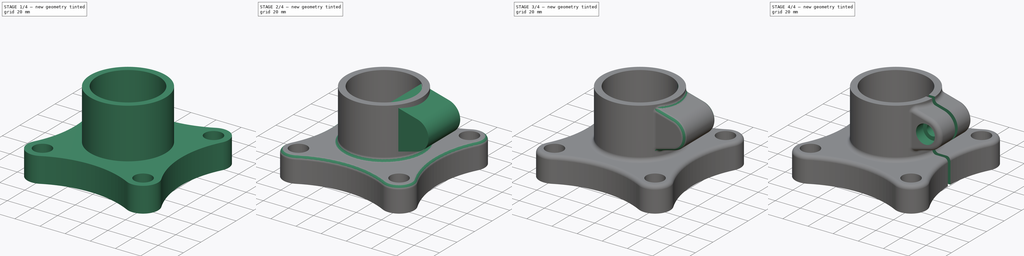
[diagram: build sequence overview — one tinted view per stage of 4, left to right]
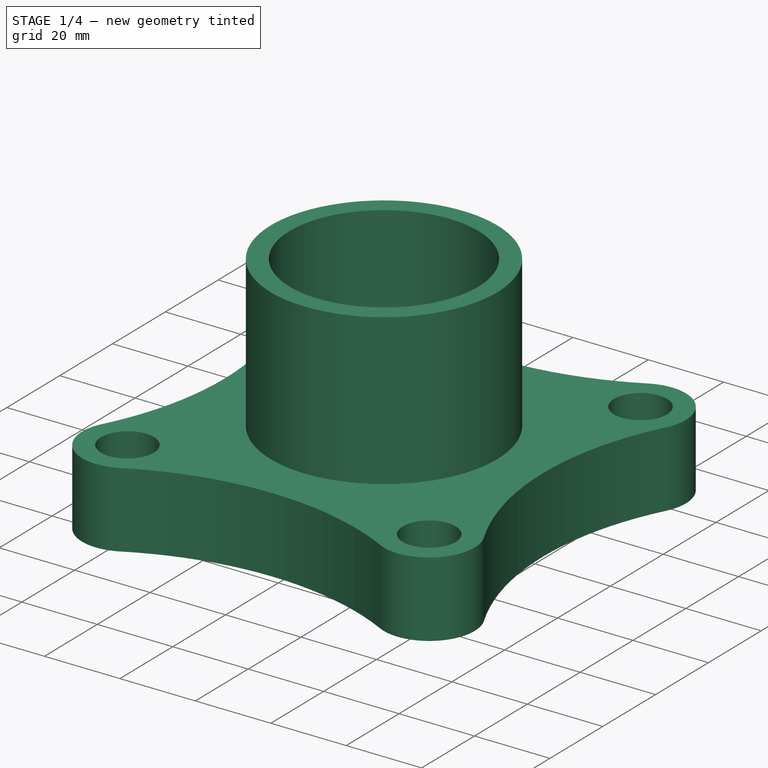
[diagram: stage 1 of 4 — iso view after this stage's code; geometry added in this stage tinted green]
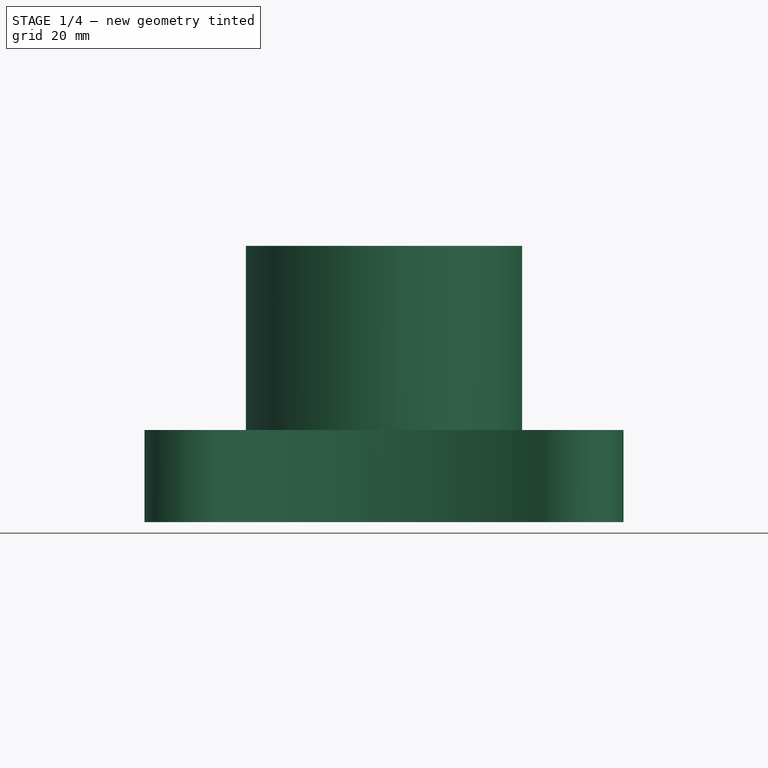
[diagram: stage 1 of 4 — front view after this stage's code; geometry added in this stage tinted green]
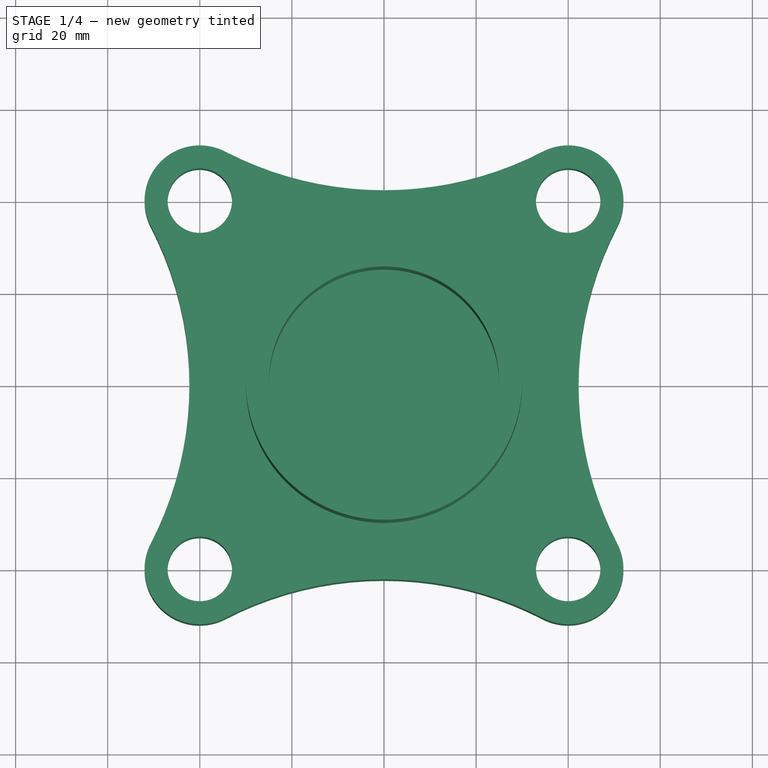
[diagram: stage 1 of 4 — top view after this stage's code; geometry added in this stage tinted green]
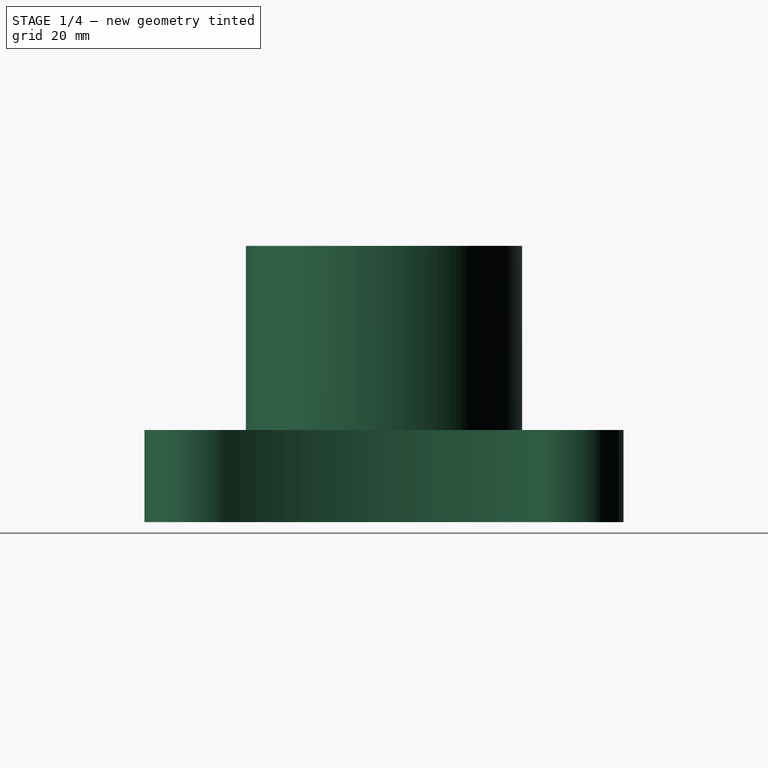
[diagram: stage 1 of 4 — right view after this stage's code; geometry added in this stage tinted green]
FCSTD DOCUMENT  (FreeCAD 1.0R39319 (Git))
Label: Mania2021
License: All rights reserved
LicenseURL: https://en.wikipedia.org/wiki/All_rights_reserved
objects: Sketcher::SketchObject×8, PartDesign::Pocket×4, PartDesign::Pad×3, PartDesign::Fillet×3, PartDesign::Hole×1, PartDesign::Body×1
note: 50 computed .brp shape members not serialized (recipe doc carries the construction recipe); baked Part::Feature solids carry a one-line shape summary decoded from their .brp

FEATURE [Sketcher::SketchObject] Sketch
  ArcFitTolerance = 1e-06
  AttachmentSupport = -> [XY_Plane]
  FullyConstrained = true
  MakeInternals = false
  MapMode = 5
  sketch-geometry (12):
    g0: ArcOfCircle CenterX=0 CenterY=117.259 CenterZ=0 NormalX=0 NormalY=0 NormalZ=1 AngleXU=0 Radius=75 StartAngle=4.23465 EndAngle=5.19013
    g1: ArcOfCircle CenterX=40 CenterY=40 CenterZ=0 NormalX=0 NormalY=0 NormalZ=1 AngleXU=0 Radius=12 StartAngle=5.80545 EndAngle=8.33172
    g2: ArcOfCircle CenterX=-40 CenterY=40 CenterZ=0 NormalX=0 NormalY=0 NormalZ=1 AngleXU=0 Radius=12 StartAngle=1.09306 EndAngle=3.61933
    g3: ArcOfCircle CenterX=-117.259 CenterY=5e-15 CenterZ=0 NormalX=0 NormalY=0 NormalZ=1 AngleXU=0 Radius=75 StartAngle=5.80545 EndAngle=6.76092
    g4: ArcOfCircle CenterX=-40 CenterY=-40 CenterZ=0 NormalX=0 NormalY=0 NormalZ=1 AngleXU=0 Radius=12 StartAngle=2.66386 EndAngle=5.19013
    g5: ArcOfCircle CenterX=0 CenterY=-117.259 CenterZ=0 NormalX=0 NormalY=0 NormalZ=1 AngleXU=0 Radius=75 StartAngle=1.09306 EndAngle=2.04853
    g6: ArcOfCircle CenterX=40 CenterY=-40 CenterZ=0 NormalX=0 NormalY=0 NormalZ=1 AngleXU=0 Radius=12 StartAngle=4.23465 EndAngle=6.76092
    g7: ArcOfCircle CenterX=117.259 CenterY=0 CenterZ=0 NormalX=0 NormalY=0 NormalZ=1 AngleXU=0 Radius=75 StartAngle=2.66386 EndAngle=3.61933
    g8: Circle CenterX=-40 CenterY=40 CenterZ=0 NormalX=0 NormalY=0 NormalZ=1 AngleXU=0 Radius=7
    g9: Circle CenterX=-40 CenterY=-40 CenterZ=0 NormalX=0 NormalY=0 NormalZ=1 AngleXU=0 Radius=7
    g10: Circle CenterX=40 CenterY=-40 CenterZ=0 NormalX=0 NormalY=0 NormalZ=1 AngleXU=0 Radius=7
    g11: Circle CenterX=40 CenterY=40 CenterZ=0 NormalX=0 NormalY=0 NormalZ=1 AngleXU=0 Radius=7
  constraints (30):
    c: Radius(g0) = 75
    c: Radius(g1) = 12
    c: PointOnObject(g0,g-2)
    c: Tangent(g2,g0) = 1.5708
    c: DistanceX(g2,g1) = 80
    c: Symmetric(g1,g2,g-2)
    c: Symmetric(g2,g3,g-1)
    c: Equal(g0,g3)
    c: Tangent(g3,g2) = 1.5708
    c: Tangent(g4,g3) = 1.5708
    c: Equal(g2,g4)
    c: DistanceY(g4,g2) = 80
    c: Tangent(g5,g4) = 1.5708
    c: PointOnObject(g5,g-2)
    c: Tangent(g6,g5) = 1.5708
    c: Tangent(g7,g6) = 1.5708
    c: Tangent(g1,g7) = 1.5708
    c: Tangent(g0,g1) = 1.5708
    c: Equal(g0,g5)
    c: Equal(g1,g6)
    c: Equal(g0,g7)
    c: PointOnObject(g7,g-1)
    c: Diameter(g8) = 14
    c: Coincident(g8,g2)
    c: Coincident(g9,g4)
    c: Coincident(g10,g6)
    c: Coincident(g11,g1)
    c: Equal(g8,g9)
    c: Equal(g8,g11)
    c: Equal(g8,g10)
FEATURE [PartDesign::Pad] Pad
  Direction = (0,0,1)
  Length = 20
  Length2 = 10
  Profile = -> Sketch
  ReferenceAxis = -> Sketch [N_Axis]
  Refine = true
  Suppressed = false
  Type = 0
FEATURE [Sketcher::SketchObject] Sketch001
  ArcFitTolerance = 1e-06
  AttachmentSupport = -> [Pad]
  ExternalGeometry = -> [Pad]
  FullyConstrained = true
  MakeInternals = false
  MapMode = 5
  Placement = pos=(0,0,0) rot=(1,0,0;3.14159rad)
  sketch-geometry (8):
    g0: ArcOfCircle CenterX=-117.259 CenterY=-5e-15 CenterZ=0 NormalX=0 NormalY=0 NormalZ=1 AngleXU=0 Radius=80 StartAngle=5.92235 EndAngle=6.64402
    g1: ArcOfCircle CenterX=-40 CenterY=40 CenterZ=0 NormalX=0 NormalY=0 NormalZ=1 AngleXU=0 Radius=12 StartAngle=4.51008 EndAngle=6.4855
    g2: ArcOfCircle CenterX=0 CenterY=117.259 CenterZ=0 NormalX=0 NormalY=0 NormalZ=1 AngleXU=0 Radius=80 StartAngle=4.35155 EndAngle=5.07323
    g3: ArcOfCircle CenterX=40 CenterY=40 CenterZ=0 NormalX=0 NormalY=0 NormalZ=1 AngleXU=0 Radius=12 StartAngle=2.93928 EndAngle=4.9147
    g4: ArcOfCircle CenterX=117.259 CenterY=0 CenterZ=0 NormalX=0 NormalY=0 NormalZ=1 AngleXU=0 Radius=80 StartAngle=2.78075 EndAngle=3.50243
    g5: ArcOfCircle CenterX=40 CenterY=-40 CenterZ=0 NormalX=0 NormalY=0 NormalZ=1 AngleXU=0 Radius=12 StartAngle=1.36848 EndAngle=3.34391
    g6: ArcOfCircle CenterX=0 CenterY=-117.259 CenterZ=0 NormalX=0 NormalY=0 NormalZ=1 AngleXU=0 Radius=80 StartAngle=1.20996 EndAngle=1.93164
    g7: ArcOfCircle CenterX=-40 CenterY=-40 CenterZ=0 NormalX=0 NormalY=0 NormalZ=1 AngleXU=0 Radius=12 StartAngle=6.08087 EndAngle=8.05629
  constraints (24):
    c: Radius(g0) = 80
    c: Coincident(g0,g-6)
    c: Coincident(g1,g-7)
    c: Coincident(g1,g0)
    c: Radius(g1) = 12
    c: Coincident(g2,g-5)
    c: Coincident(g2,g1)
    c: Equal(g0,g2)
    c: Coincident(g3,g-8)
    c: Coincident(g3,g2)
    c: Equal(g1,g3)
    c: Coincident(g4,g-4)
    c: Coincident(g4,g3)
    c: Equal(g0,g4)
    c: Coincident(g5,g-9)
    c: Coincident(g5,g4)
    c: Equal(g1,g5)
    c: Coincident(g6,g-3)
    c: Coincident(g6,g5)
    c: Equal(g0,g6)
    c: Coincident(g7,g-10)
    c: Coincident(g7,g6)
    c: Coincident(g7,g0)
    c: Equal(g1,g7)
FEATURE [PartDesign::Pocket] Pocket
  BaseFeature = -> Pad
  Direction = (0,0,1)
  Length = 15
  Length2 = 5
  Profile = -> Sketch001
  ReferenceAxis = -> Sketch001 [N_Axis]
  Refine = true
  Suppressed = false
  Type = 0
FEATURE [Sketcher::SketchObject] Sketch002
  ArcFitTolerance = 1e-06
  AttachmentSupport = -> [Pocket]
  FullyConstrained = true
  MakeInternals = false
  MapMode = 5
  Placement = pos=(0,0,15) rot=(1,0,0;3.14159rad)
  sketch-geometry (2):
    g0: Circle CenterX=0 CenterY=0 CenterZ=0 NormalX=0 NormalY=0 NormalZ=1 AngleXU=0 Radius=30
    g1: Circle CenterX=0 CenterY=0 CenterZ=0 NormalX=0 NormalY=0 NormalZ=1 AngleXU=0 Radius=25
  constraints (4):
    c: Diameter(g0) = 60
    c: Coincident(g0,g-1)
    c: Diameter(g1) = 50
    c: Coincident(g1,g0)
FEATURE [PartDesign::Pad] Pad001
  BaseFeature = -> Pocket
  Direction = (0,0,-1)
  Length = 15
  Length2 = 45
  Profile = -> Sketch002
  ReferenceAxis = -> Sketch002 [N_Axis]
  Refine = true
  Suppressed = false
  Type = 4
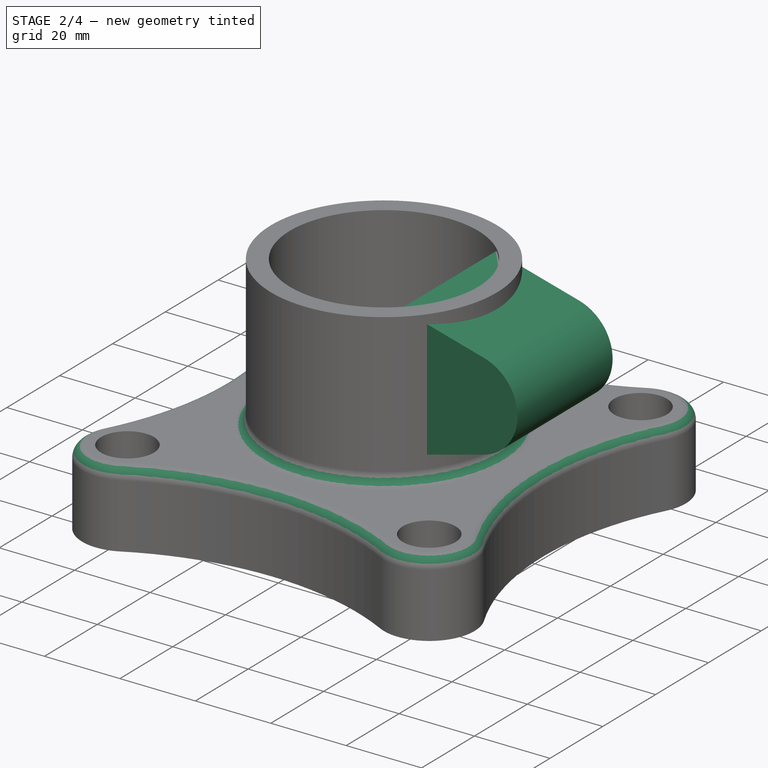
[diagram: stage 2 of 4 — iso view after this stage's code; geometry added in this stage tinted green]
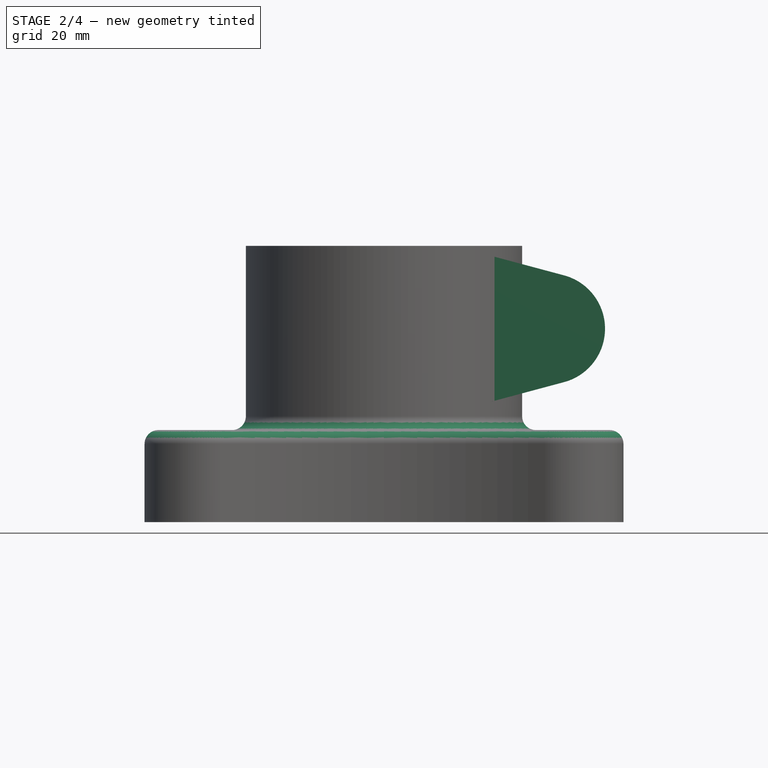
[diagram: stage 2 of 4 — front view after this stage's code; geometry added in this stage tinted green]
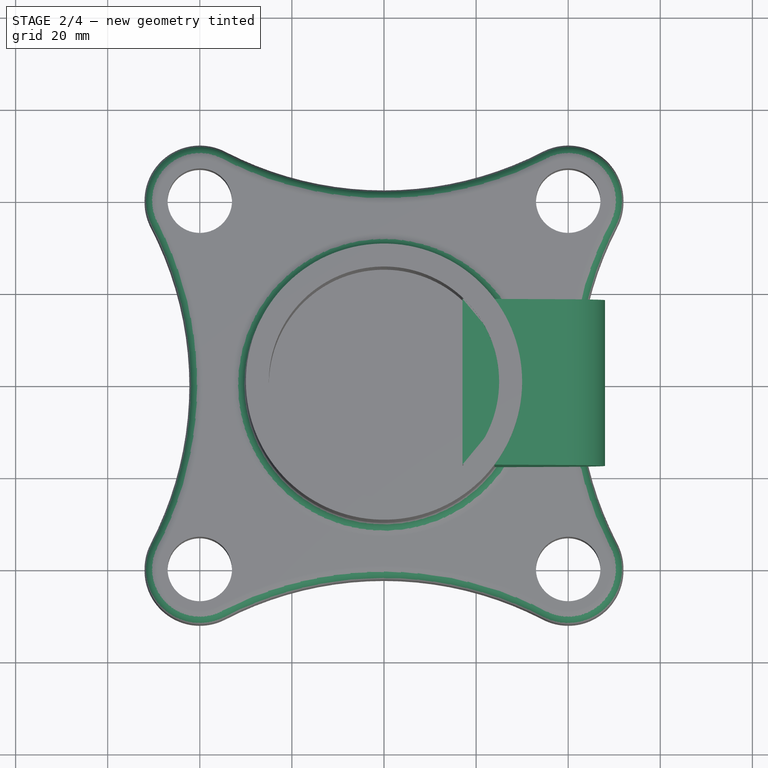
[diagram: stage 2 of 4 — top view after this stage's code; geometry added in this stage tinted green]
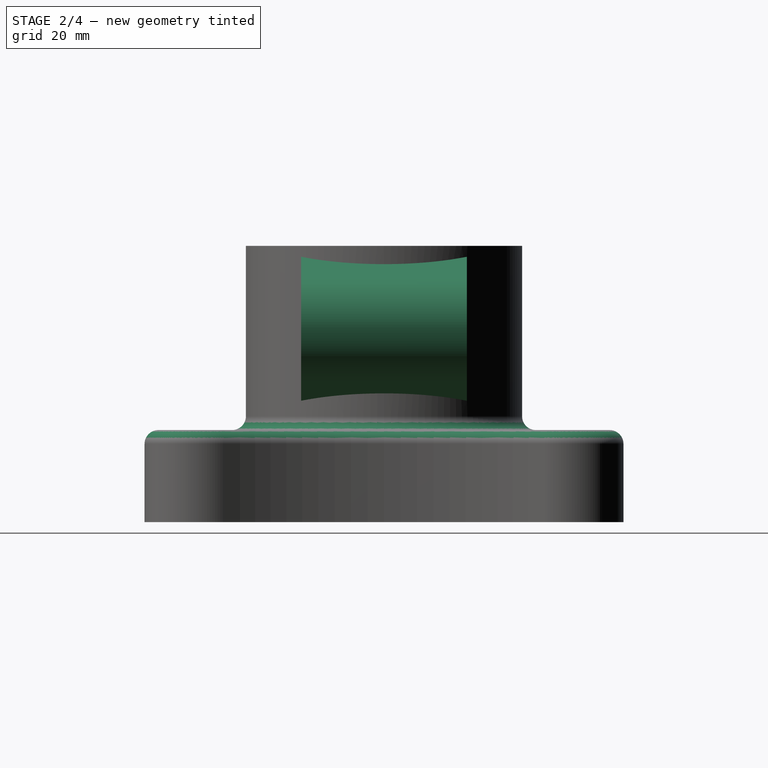
[diagram: stage 2 of 4 — right view after this stage's code; geometry added in this stage tinted green]
FEATURE [PartDesign::Fillet] Fillet
  Base = -> Pad001 [Face24,Edge58,Edge45,Edge46,Edge48,Edge50,Edge52,Edge56,Edge54]
  BaseFeature = -> Pad001
  Radius = 3
  Refine = true
  SupportTransform = false
  Suppressed = false
  UseAllEdges = false
FEATURE [PartDesign::Fillet] Fillet001
  Base = -> Fillet [Edge117,Edge69]
  BaseFeature = -> Fillet
  Radius = 3
  Refine = true
  SupportTransform = false
  Suppressed = false
  UseAllEdges = false
FEATURE [Sketcher::SketchObject] Sketch003
  ArcFitTolerance = 1e-06
  AttachmentSupport = -> [XZ_Plane]
  FullyConstrained = true
  MakeInternals = false
  MapMode = 5
  Placement = pos=(0,0,0) rot=(1,0,0;1.5708rad)
  sketch-geometry (5):
    g0: LineSegment StartX=17.0536 StartY=59.5 StartZ=0 EndX=39.1058 EndY=53.5911 EndZ=0
    g1: LineSegment StartX=39.1058 StartY=30.4089 StartZ=0 EndX=17.0536 EndY=24.5 EndZ=0
    g2: LineSegment StartX=17.0536 StartY=24.5 StartZ=0 EndX=17.0536 EndY=59.5 EndZ=0
    g3: ArcOfCircle CenterX=36 CenterY=42 CenterZ=0 NormalX=0 NormalY=0 NormalZ=1 AngleXU=0 Radius=12 StartAngle=4.97419 EndAngle=7.59218
    g4: GeomPoint [constr] X=82.3644 Y=42 Z=0
  constraints (13):
    c: Coincident(g2,g1)
    c: Coincident(g2,g0)
    c: Vertical(g2)
    c: PointOnObject(g4,g1)
    c: PointOnObject(g4,g0)
    c: Tangent(g1,g3) = 1.5708
    c: Tangent(g0,g3) = 1.5708
    c: Radius(g3) = 12
    c: Angle(g0,g1) = 0.523599
    c: Distance(g3,g-2) = 36
    c: DistanceY(g-1,g3) = 42
    c: Angle(g-1,g1) = 0.261799
    c: DistanceY(g2,g2) = 35
FEATURE [PartDesign::Pad] Pad002
  BaseFeature = -> Fillet001
  Direction = (0,-1,2e-16)
  Length = 36
  Length2 = 10
  Midplane = true
  Profile = -> Sketch003
  ReferenceAxis = -> Sketch003 [N_Axis]
  Refine = true
  Suppressed = false
  Type = 0
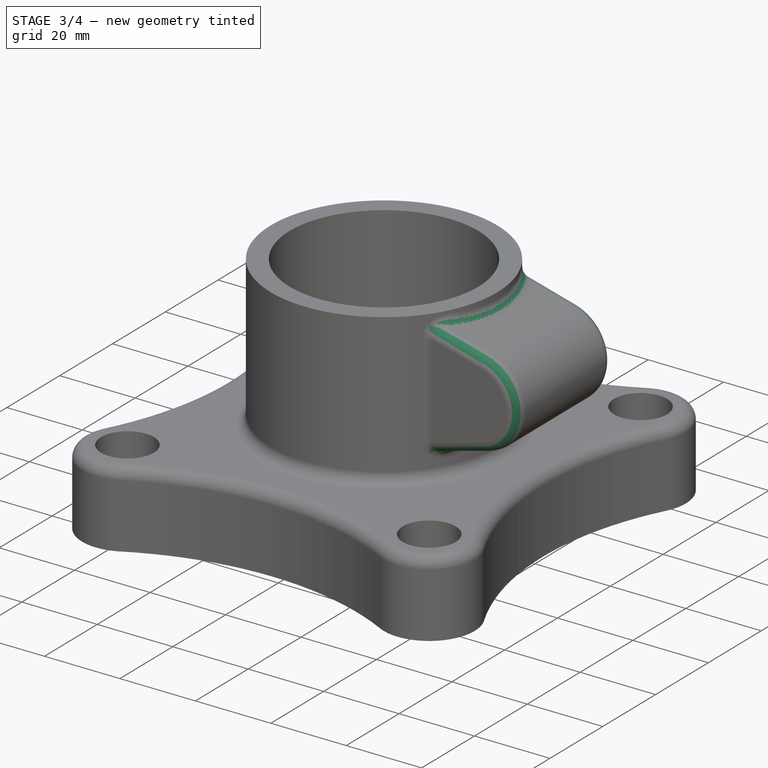
[diagram: stage 3 of 4 — iso view after this stage's code; geometry added in this stage tinted green]
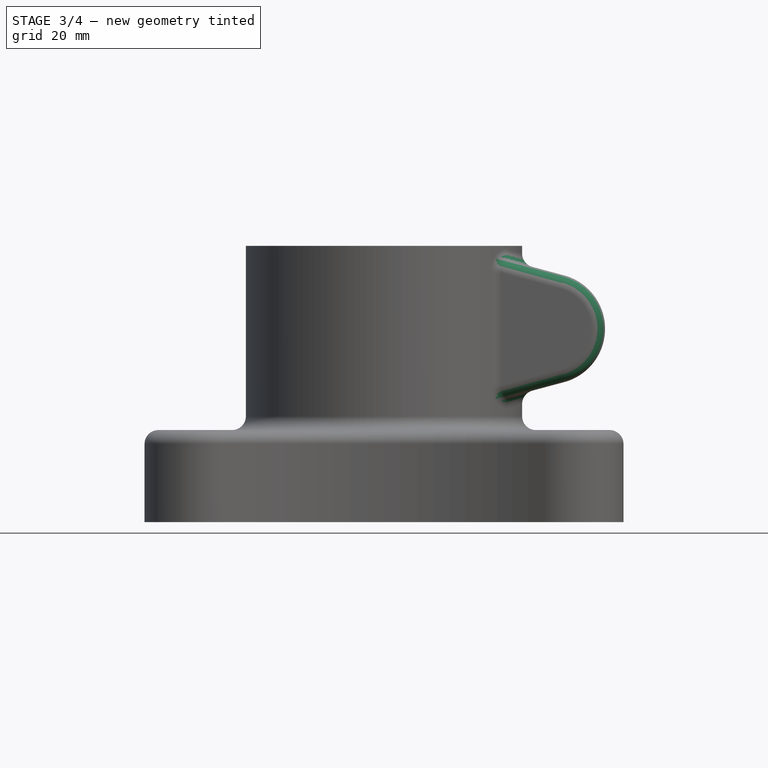
[diagram: stage 3 of 4 — front view after this stage's code; geometry added in this stage tinted green]
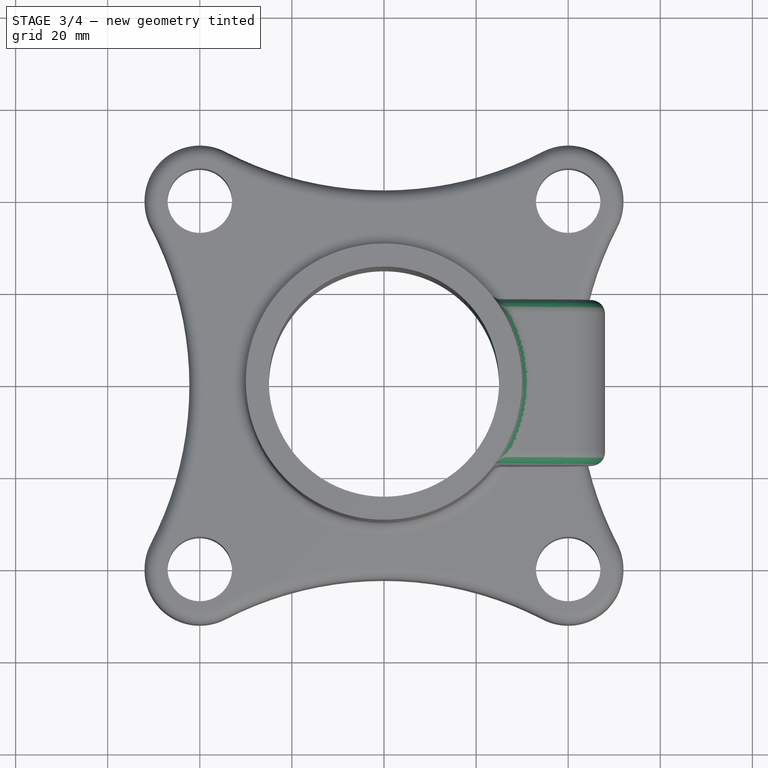
[diagram: stage 3 of 4 — top view after this stage's code; geometry added in this stage tinted green]
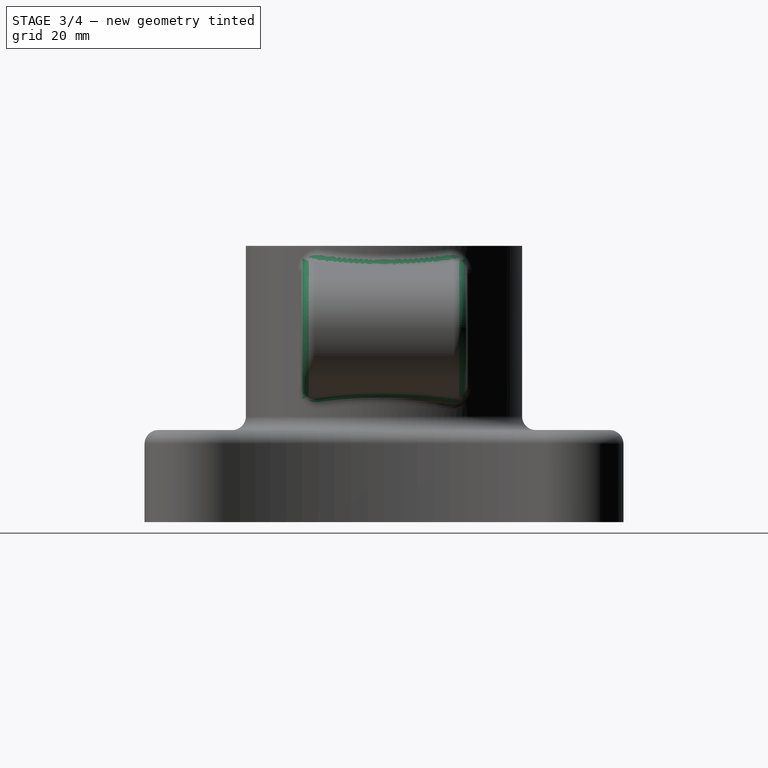
[diagram: stage 3 of 4 — right view after this stage's code; geometry added in this stage tinted green]
FEATURE [Sketcher::SketchObject] Sketch004
  ArcFitTolerance = 1e-06
  AttachmentSupport = -> [Pad002]
  FullyConstrained = true
  MakeInternals = false
  MapMode = 5
  Placement = pos=(0,0,15) rot=(1,0,0;3.14159rad)
  sketch-geometry (1):
    g0: Circle CenterX=0 CenterY=0 CenterZ=0 NormalX=0 NormalY=0 NormalZ=1 AngleXU=0 Radius=25
  constraints (2):
    c: Diameter(g0) = 50
    c: Coincident(g0,g-1)
FEATURE [PartDesign::Pocket] Pocket001
  BaseFeature = -> Pad002
  Direction = (0,0,1)
  Length = 5
  Length2 = 5
  Profile = -> Sketch004
  ReferenceAxis = -> Sketch004 [N_Axis]
  Refine = true
  Suppressed = false
  Type = 1
FEATURE [PartDesign::Fillet] Fillet002
  Base = -> Pocket001 [Face60,Face62,Edge144,Edge142]
  BaseFeature = -> Pocket001
  Radius = 3
  Refine = true
  SupportTransform = false
  Suppressed = false
  UseAllEdges = false
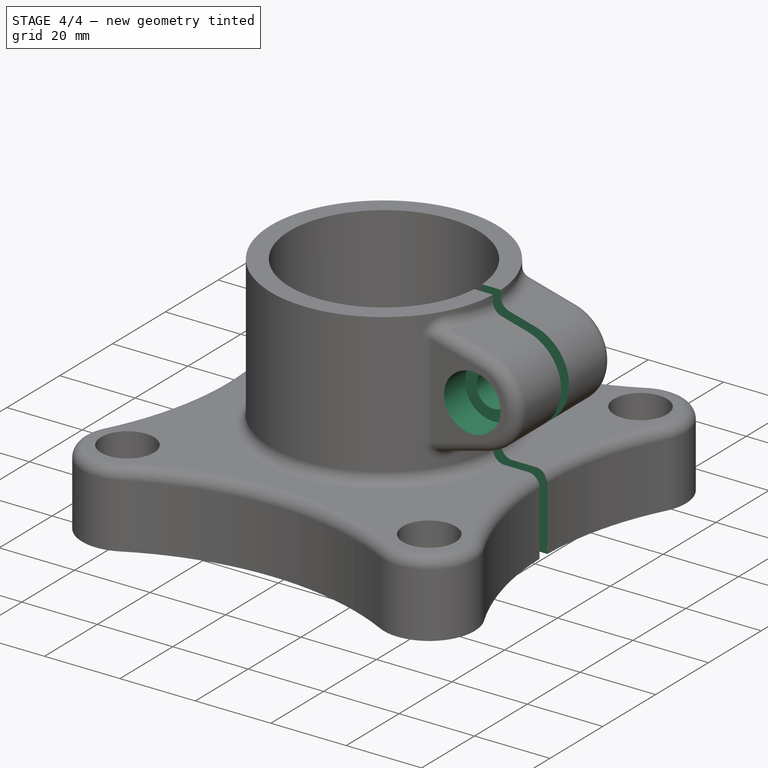
[diagram: stage 4 of 4 — iso view after this stage's code; geometry added in this stage tinted green]
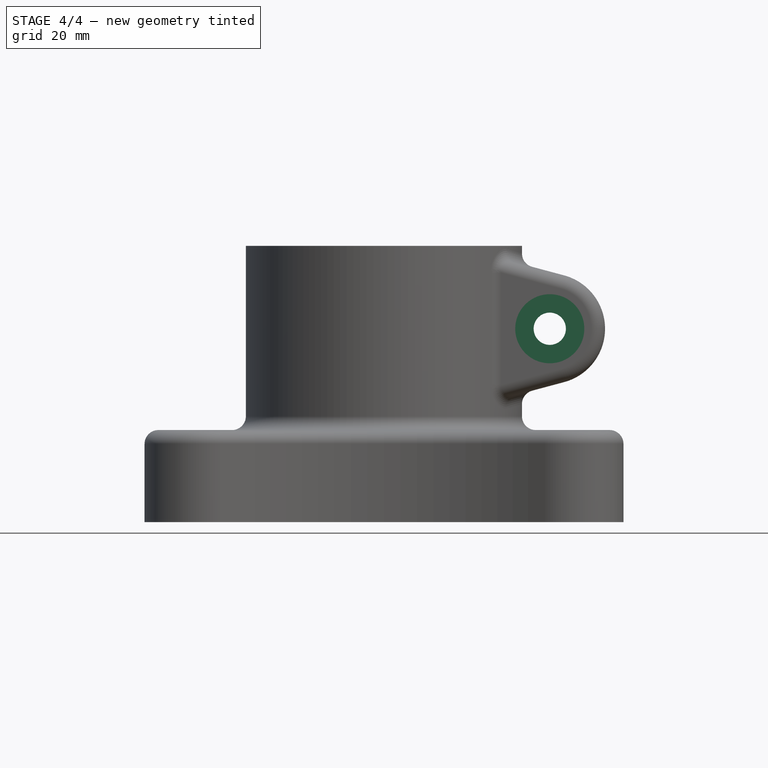
[diagram: stage 4 of 4 — front view after this stage's code; geometry added in this stage tinted green]
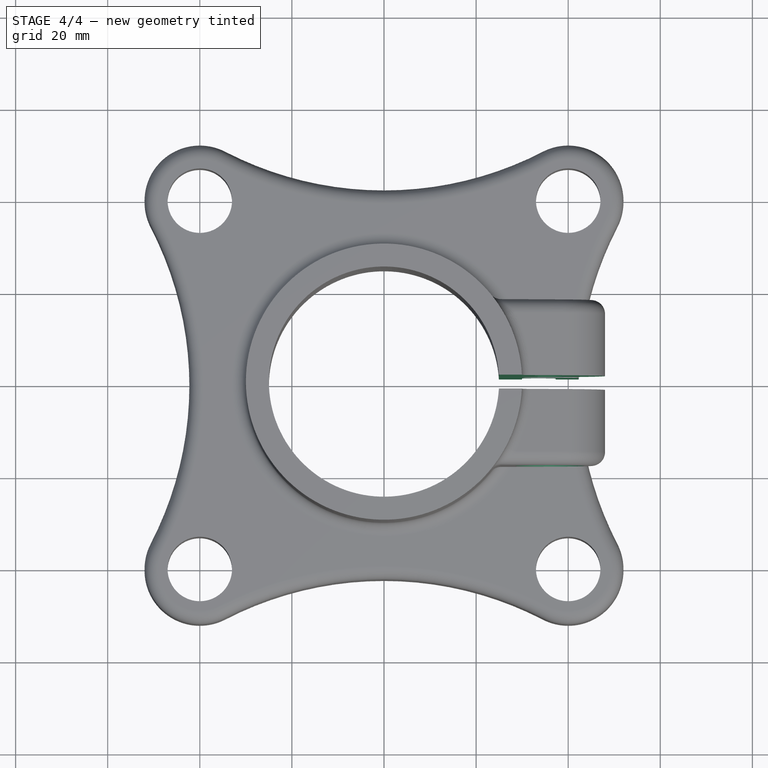
[diagram: stage 4 of 4 — top view after this stage's code; geometry added in this stage tinted green]
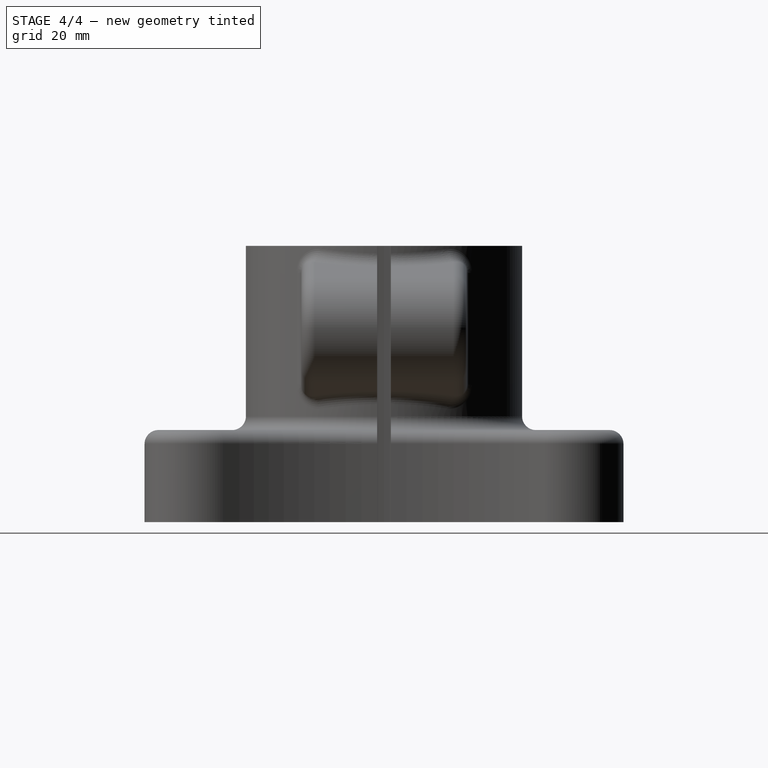
[diagram: stage 4 of 4 — right view after this stage's code; geometry added in this stage tinted green]
FEATURE [Sketcher::SketchObject] Sketch005
  ArcFitTolerance = 1e-06
  AttachmentSupport = -> [XY_Plane]
  FullyConstrained = true
  MakeInternals = false
  MapMode = 5
  sketch-geometry (4):
    g0: LineSegment StartX=0 StartY=1.5 StartZ=0 EndX=0 EndY=-1.5 EndZ=0
    g1: LineSegment StartX=0 StartY=-1.5 StartZ=0 EndX=100 EndY=-1.5 EndZ=0
    g2: LineSegment StartX=100 StartY=-1.5 StartZ=0 EndX=100 EndY=1.5 EndZ=0
    g3: LineSegment StartX=100 StartY=1.5 StartZ=0 EndX=0 EndY=1.5 EndZ=0
  constraints (11):
    c: Coincident(g0,g1)
    c: Coincident(g1,g2)
    c: Coincident(g2,g3)
    c: Coincident(g3,g0)
    c: Vertical(g0)
    c: Horizontal(g1)
    c: Horizontal(g3)
    c: PointOnObject(g0,g-2)
    c: DistanceX(g1,g1) = 100
    c: Distance(g2,g2) = 3
    c: Symmetric(g2,g1,g-1)
FEATURE [PartDesign::Pocket] Pocket002
  BaseFeature = -> Fillet002
  Direction = (0,0,-1)
  Length = 5
  Length2 = 5
  Profile = -> Sketch005
  ReferenceAxis = -> Sketch005 [N_Axis]
  Refine = true
  Reversed = true
  Suppressed = false
  Type = 1
FEATURE [Sketcher::SketchObject] Sketch006
  ArcFitTolerance = 1e-06
  AttachmentSupport = -> [Pocket002]
  ExternalGeometry = -> [Pocket002]
  FullyConstrained = true
  MakeInternals = false
  MapMode = 5
  Placement = pos=(0,-18,0) rot=(1,0,0;1.5708rad)
  sketch-geometry (1):
    g0: Circle CenterX=36 CenterY=42 CenterZ=0 NormalX=0 NormalY=0 NormalZ=1 AngleXU=0 Radius=3.5
  constraints (2):
    c: Diameter(g0) = 7
    c: Coincident(g0,g-3)
FEATURE [PartDesign::Hole] Hole
  BaseFeature = -> Pocket002
  CustomThreadClearance = 0
  Depth = 17
  DepthType = 0
  Diameter = 9
  DrillForDepth = false
  DrillPoint = 1
  DrillPointAngle = 118
  HoleCutCountersinkAngle = 90
  HoleCutCustomValues = false
  HoleCutDepth = 8
  HoleCutDiameter = 15
  HoleCutType = 1
  ModelThread = false
  Profile = -> Sketch006
  Refine = true
  Suppressed = false
  Tapered = false
  TaperedAngle = 90
  ThreadClass = 0
  ThreadDepth = 17
  ThreadDepthType = 0
  ThreadDirection = 0
  ThreadFit = 0
  ThreadSize = 16
  ThreadType = 1
  Threaded = false
  UseCustomThreadClearance = false
FEATURE [Sketcher::SketchObject] Sketch007
  ArcFitTolerance = 1e-06
  AttachmentSupport = -> [Hole]
  ExternalGeometry = -> [Hole]
  FullyConstrained = true
  MakeInternals = false
  MapMode = 5
  Placement = pos=(0,1.5,0) rot=(1,0,0;1.5708rad)
  sketch-geometry (1):
    g0: Circle CenterX=36 CenterY=42 CenterZ=0 NormalX=0 NormalY=0 NormalZ=1 AngleXU=0 Radius=3.5
  constraints (2):
    c: Diameter(g0) = 7
    c: Coincident(g0,g-3)
FEATURE [PartDesign::Pocket] Pocket003
  BaseFeature = -> Hole
  Direction = (0,1,-2e-16)
  Length = 5
  Length2 = 5
  Profile = -> Sketch007
  ReferenceAxis = -> Sketch007 [N_Axis]
  Refine = true
  Suppressed = false
  Type = 1
FEATURE [PartDesign::Body] Body
  AllowCompound = false
  Group = -> [Sketch,Pad,Sketch001,Pocket,Sketch002,Pad001,Fillet,Fillet001,Sketch003,Pad002,Sketch004,Pocket001,Fillet002,Sketch005,Pocket002,Sketch006,Hole,Sketch007,Pocket003]
  Origin = -> Origin
  Tip = -> Pocket003
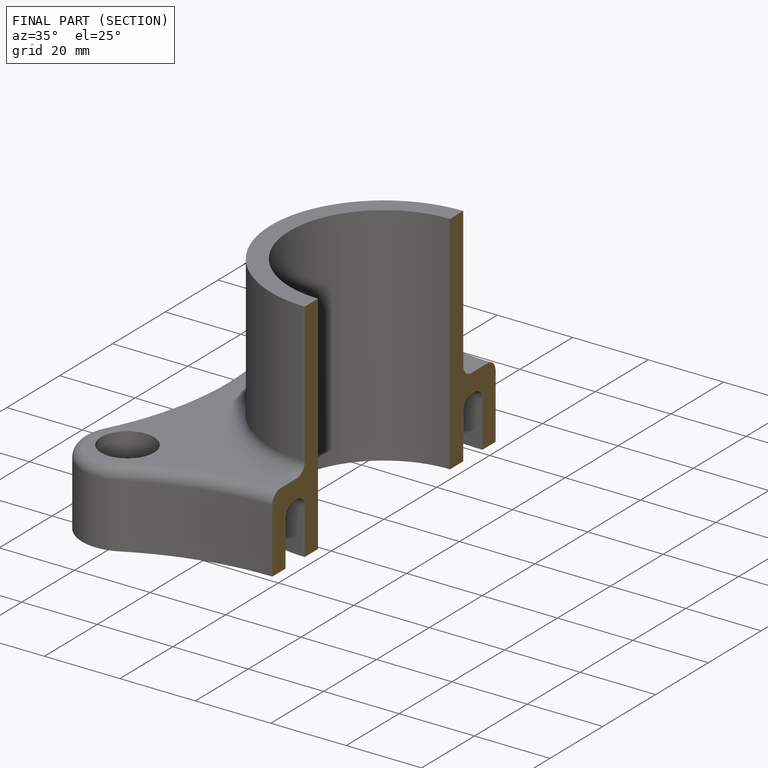
[diagram: finished part — half-section view (interior)]
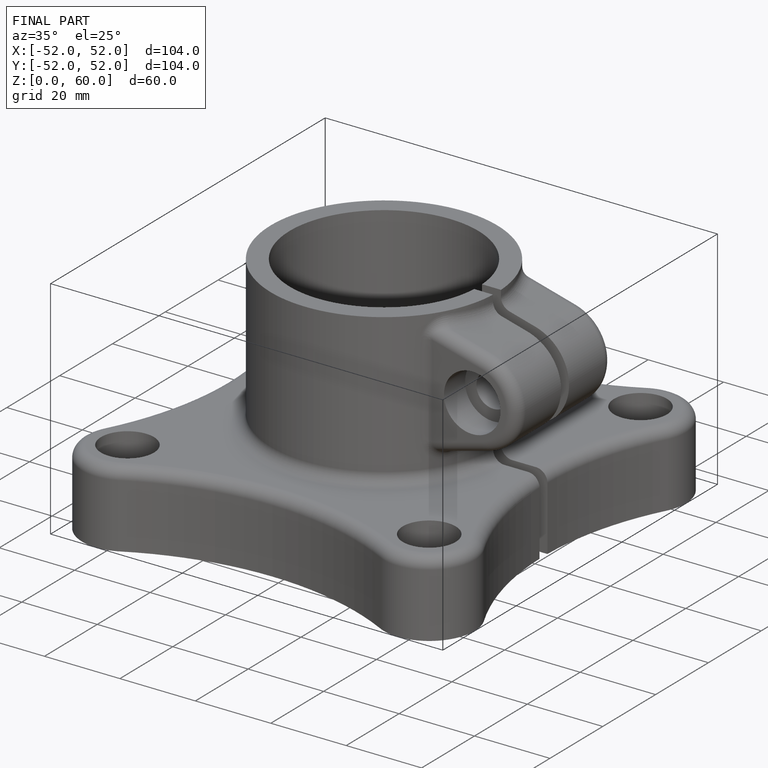
[diagram: finished part — iso view with bounding-box wireframe]
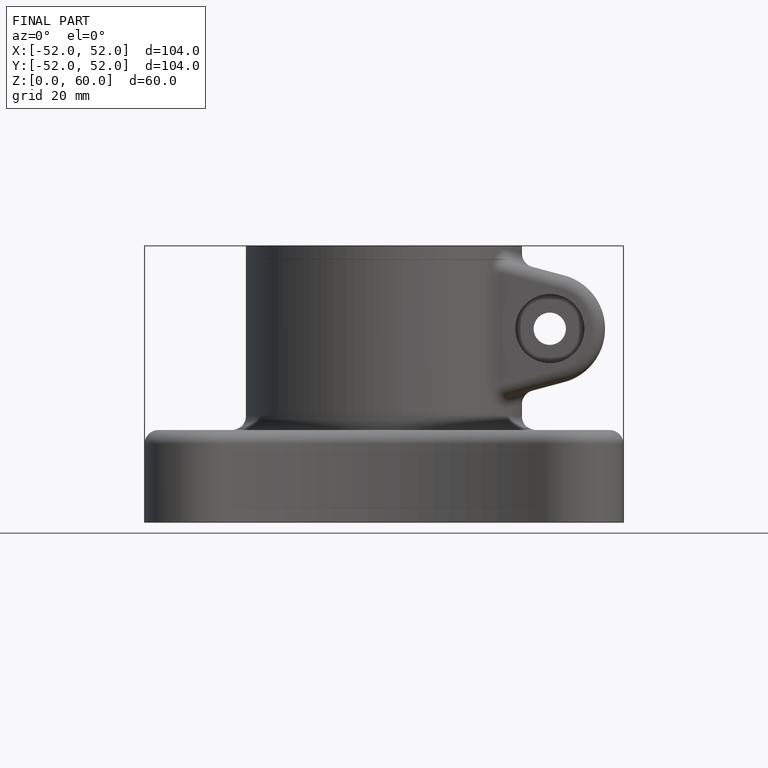
[diagram: finished part — front view with bounding-box wireframe]
